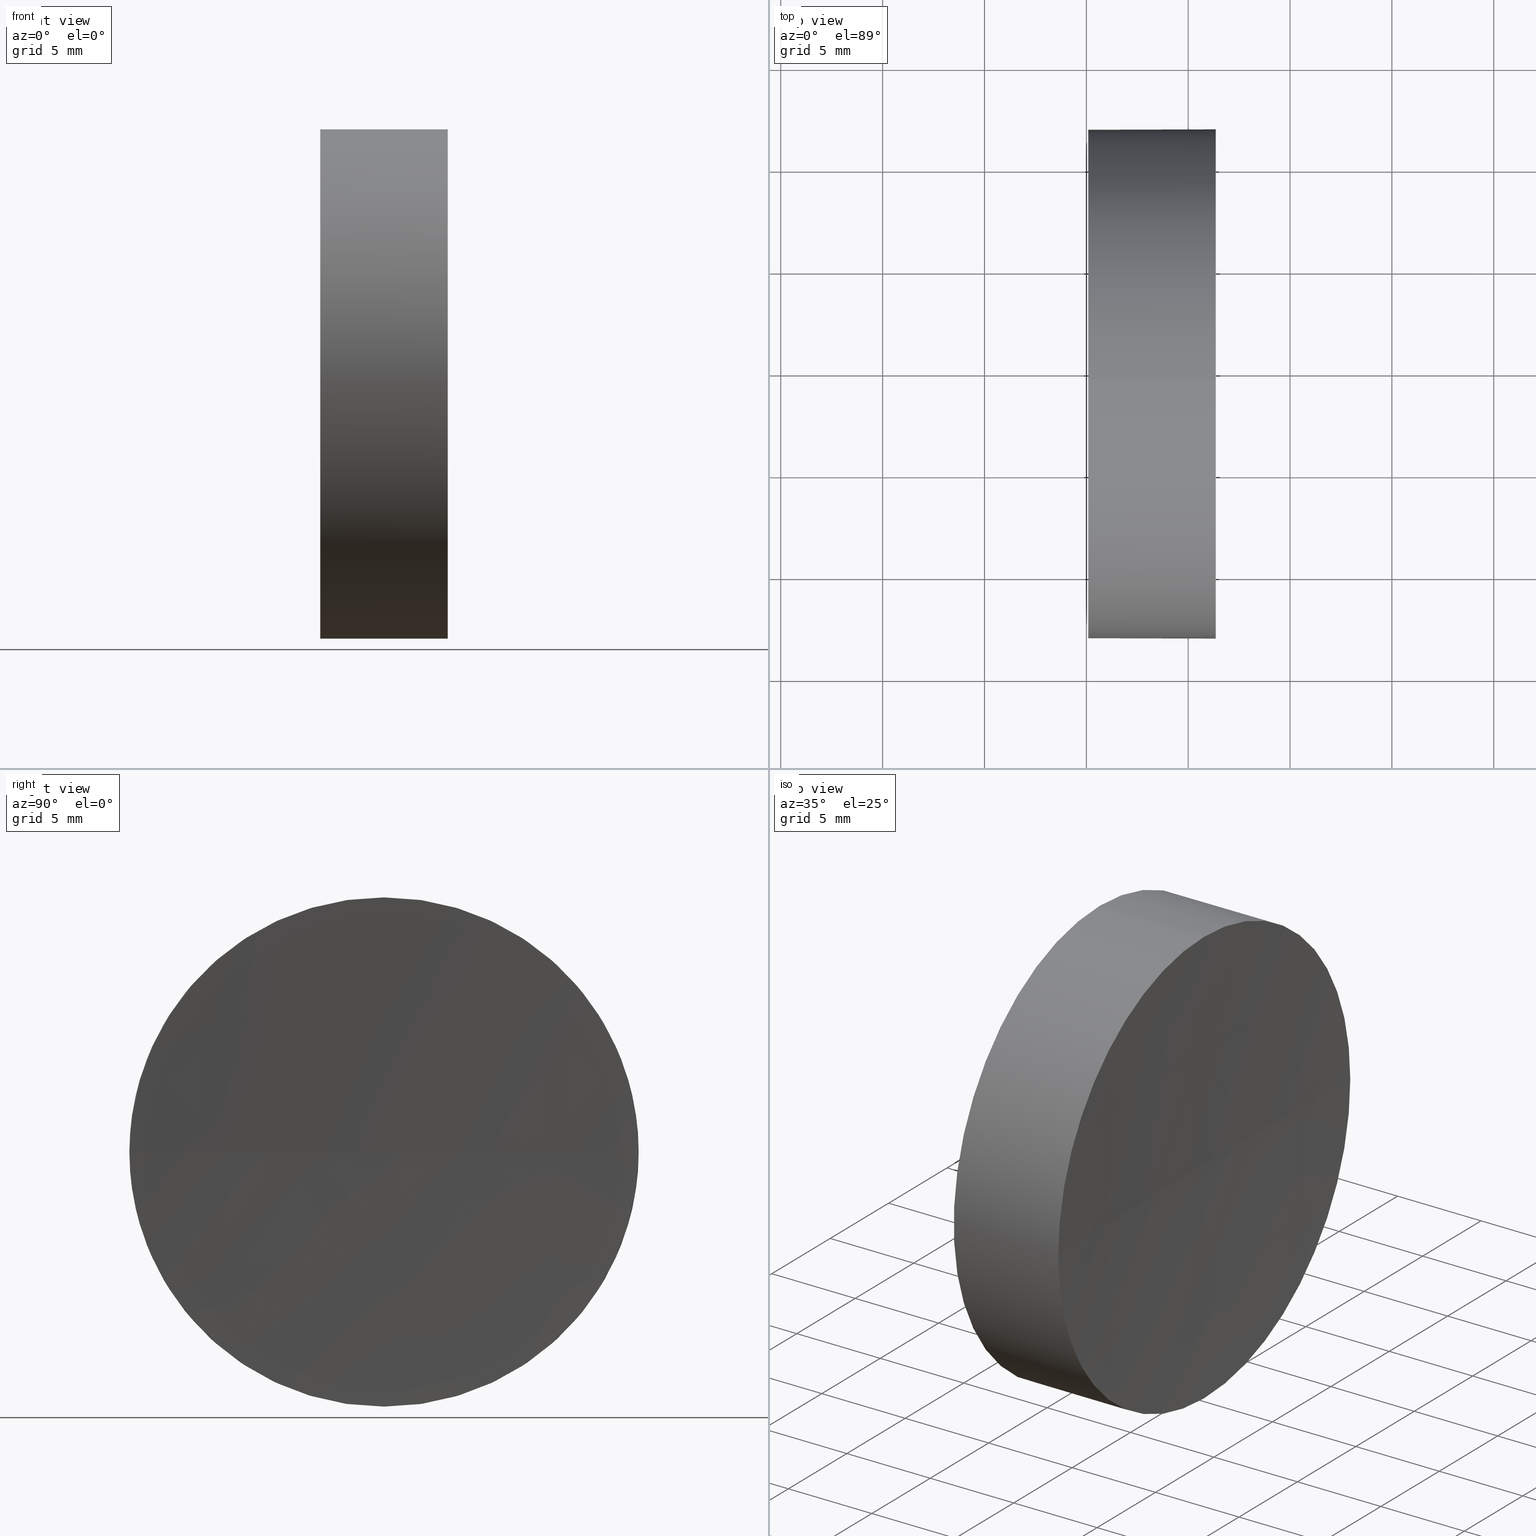
[diagram: canonical four-view strip — front | top / right | iso, engineering-drawing reading convention]
A machine part, canonical four-view strip (front | top / right | iso — engineering-drawing reading convention). The complete STEP part file that produces these views, byte-faithful:
ISO-10303-21;
HEADER;
FILE_DESCRIPTION (( 'STEP AP214' ),
    '1' );
FILE_NAME ('270028.STEP',
    '2019-07-22T07:20:02',
    ( '' ),
    ( '' ),
    'SwSTEP 2.0',
    'SolidWorks 2016',
    '' );
FILE_SCHEMA (( 'AUTOMOTIVE_DESIGN' ));
ENDSEC;

DATA;
#1 =( GEOMETRIC_REPRESENTATION_CONTEXT ( 3 ) GLOBAL_UNCERTAINTY_ASSIGNED_CONTEXT ( ( #33 ) ) GLOBAL_UNIT_ASSIGNED_CONTEXT ( ( #108, #67, #175 ) ) REPRESENTATION_CONTEXT ( 'NONE', 'WORKASPACE' ) );
#2 = CARTESIAN_POINT ( 'NONE',  ( 108.9851430021651000, 69.37802112337243400, 12.50000000000001100 ) ) ;
#3 = CIRCLE ( 'NONE', #38, 12.49999999999999600 ) ;
#4 = DIRECTION ( 'NONE',  ( 0.0000000000000000000, 0.0000000000000000000, -1.000000000000000000 ) ) ;
#5 = STYLED_ITEM ( 'NONE', ( #39 ), #144 ) ;
#6 = VERTEX_POINT ( 'NONE', #15 ) ;
#7 = SURFACE_STYLE_USAGE ( .BOTH. , #145 ) ;
#8 = ORIENTED_EDGE ( 'NONE', *, *, #75, .T. ) ;
#9 = VECTOR ( 'NONE', #96, 1000.000000000000000 ) ;
#10 = PRODUCT_DEFINITION ( 'δ֪', '', #172, #60 ) ;
#11 = DIRECTION ( 'NONE',  ( 0.0000000000000000000, 0.0000000000000000000, 1.000000000000000000 ) ) ;
#12 = SURFACE_STYLE_USAGE ( .BOTH. , #165 ) ;
#13 = AXIS2_PLACEMENT_3D ( 'NONE', #44, #133, #142 ) ;
#14 = CARTESIAN_POINT ( 'NONE',  ( 121.3531853088416000, 69.37802112337243400, 0.0000000000000000000 ) ) ;
#15 = CARTESIAN_POINT ( 'NONE',  ( 121.3531853088415900, 56.87802112337222100, 0.0000000000000000000 ) ) ;
#16 = ORIENTED_EDGE ( 'NONE', *, *, #25, .T. ) ;
#17 = CIRCLE ( 'NONE', #30, 12.50000000000002500 ) ;
#18 = DIRECTION ( 'NONE',  ( 0.0000000000000000000, 0.0000000000000000000, 1.000000000000000000 ) ) ;
#19 = PRESENTATION_LAYER_ASSIGNMENT (  '', '', ( #5 ) ) ;
#20 = ADVANCED_FACE ( 'NONE', ( #128 ), #126, .T. ) ;
#21 = SPHERICAL_SURFACE ( 'NONE', #13, 300.0000000000000600 ) ;
#22 = AXIS2_PLACEMENT_3D ( 'NONE', #185, #83, #18 ) ;
#23 = FILL_AREA_STYLE_COLOUR ( '', #103 ) ;
#24 = CYLINDRICAL_SURFACE ( 'NONE', #89, 12.50000000000001100 ) ;
#25 = EDGE_CURVE ( 'NONE', #77, #121, #3, .T. ) ;
#26 = ORIENTED_EDGE ( 'NONE', *, *, #29, .T. ) ;
#27 = ORIENTED_EDGE ( 'NONE', *, *, #29, .F. ) ;
#28 = CARTESIAN_POINT ( 'NONE',  ( 115.0926555349195200, 69.37802112337243400, 12.49999999999999600 ) ) ;
#29 = EDGE_CURVE ( 'NONE', #121, #77, #174, .T. ) ;
#30 = AXIS2_PLACEMENT_3D ( 'NONE', #159, #62, #59 ) ;
#31 = PRODUCT ( '270028', '270028', '', ( #53 ) ) ;
#32 = FACE_OUTER_BOUND ( 'NONE', #154, .T. ) ;
#33 = UNCERTAINTY_MEASURE_WITH_UNIT (LENGTH_MEASURE( 1.000000000000000100E-005 ), #108, 'distance_accuracy_value', 'NONE');
#34 = AXIS2_PLACEMENT_3D ( 'NONE', #131, #94, #78 ) ;
#35 = DIRECTION ( 'NONE',  ( 0.0000000000000000000, -1.224646799147353200E-016, 1.000000000000000000 ) ) ;
#36 = CIRCLE ( 'NONE', #58, 300.0000000000000600 ) ;
#37 = CARTESIAN_POINT ( 'NONE',  ( 108.9851430021651000, 69.37802112337243400, -12.50000000000001100 ) ) ;
#38 = AXIS2_PLACEMENT_3D ( 'NONE', #74, #167, #84 ) ;
#39 = PRESENTATION_STYLE_ASSIGNMENT (( #7 ) ) ;
#40 = FILL_AREA_STYLE ('',( #104 ) ) ;
#41 = DIRECTION ( 'NONE',  ( -1.000000000000000000, -0.0000000000000000000, -0.0000000000000000000 ) ) ;
#42 = ORIENTED_EDGE ( 'NONE', *, *, #151, .T. ) ;
#43 =( NAMED_UNIT ( * ) PLANE_ANGLE_UNIT ( ) SI_UNIT ( $, .RADIAN. ) );
#44 = CARTESIAN_POINT ( 'NONE',  ( 421.0926555158865800, 69.37802112337246300, 0.0000000000000000000 ) ) ;
#45 = ORIENTED_EDGE ( 'NONE', *, *, #166, .T. ) ;
#46 = LINE ( 'NONE', #37, #9 ) ;
#47 = ORIENTED_EDGE ( 'NONE', *, *, #137, .T. ) ;
#48 = FILL_AREA_STYLE ('',( #23 ) ) ;
#49 = AXIS2_PLACEMENT_3D ( 'NONE', #98, #173, #61 ) ;
#50 = APPLICATION_CONTEXT ( 'automotive_design' ) ;
#51 = ORIENTED_EDGE ( 'NONE', *, *, #146, .F. ) ;
#52 = FACE_OUTER_BOUND ( 'NONE', #86, .T. ) ;
#53 = PRODUCT_CONTEXT ( 'NONE', #50, 'mechanical' ) ;
#54 = AXIS2_PLACEMENT_3D ( 'NONE', #14, #169, #136 ) ;
#55 = DIRECTION ( 'NONE',  ( -1.000000000000000000, -0.0000000000000000000, -0.0000000000000000000 ) ) ;
#56 = CARTESIAN_POINT ( 'NONE',  ( 108.9851430021651000, 69.37802112337243400, 0.0000000000000000000 ) ) ;
#57 = DIRECTION ( 'NONE',  ( 0.0000000000000000000, 0.0000000000000000000, 1.000000000000000000 ) ) ;
#58 = AXIS2_PLACEMENT_3D ( 'NONE', #143, #127, #115 ) ;
#59 = DIRECTION ( 'NONE',  ( 0.0000000000000000000, 0.0000000000000000000, 1.000000000000000000 ) ) ;
#60 = PRODUCT_DEFINITION_CONTEXT ( 'detailed design', #101, 'design' ) ;
#61 = DIRECTION ( 'NONE',  ( 0.0000000000000000000, 0.0000000000000000000, 1.000000000000000000 ) ) ;
#62 = DIRECTION ( 'NONE',  ( -1.000000000000000000, -0.0000000000000000000, -0.0000000000000000000 ) ) ;
#63 = PRODUCT_RELATED_PRODUCT_CATEGORY ( 'part', '', ( #31 ) ) ;
#64 = CARTESIAN_POINT ( 'NONE',  ( 0.0000000000000000000, 0.0000000000000000000, 0.0000000000000000000 ) ) ;
#65 = FACE_OUTER_BOUND ( 'NONE', #113, .T. ) ;
#66 = CARTESIAN_POINT ( 'NONE',  ( 121.3531853088416000, 69.37802112337243400, -12.50000000000002500 ) ) ;
#67 =( NAMED_UNIT ( * ) PLANE_ANGLE_UNIT ( ) SI_UNIT ( $, .RADIAN. ) );
#68 = ORIENTED_EDGE ( 'NONE', *, *, #163, .T. ) ;
#69 = DIRECTION ( 'NONE',  ( 1.000000000000000000, 0.0000000000000000000, 0.0000000000000000000 ) ) ;
#70 = EDGE_CURVE ( 'NONE', #119, #102, #138, .T. ) ;
#71 = ORIENTED_EDGE ( 'NONE', *, *, #163, .F. ) ;
#72 = AXIS2_PLACEMENT_3D ( 'NONE', #106, #35, #81 ) ;
#73 = PRODUCT_DEFINITION_SHAPE ( 'NONE', 'NONE',  #10 ) ;
#74 = CARTESIAN_POINT ( 'NONE',  ( 115.0926555349195200, 69.37802112337243400, 0.0000000000000000000 ) ) ;
#75 = EDGE_CURVE ( 'NONE', #102, #186, #170, .T. ) ;
#76 = CARTESIAN_POINT ( 'NONE',  ( 121.3531853088416000, 69.37802112337243400, 12.50000000000002500 ) ) ;
#77 = VERTEX_POINT ( 'NONE', #28 ) ;
#78 = DIRECTION ( 'NONE',  ( 0.0000000000000000000, -1.000000000000000000, 0.0000000000000000000 ) ) ;
#79 = ORIENTED_EDGE ( 'NONE', *, *, #166, .F. ) ;
#80 =( LENGTH_UNIT ( ) NAMED_UNIT ( * ) SI_UNIT ( .MILLI., .METRE. ) );
#81 = DIRECTION ( 'NONE',  ( 0.0000000000000000000, -1.000000000000000000, -1.224646799147353200E-016 ) ) ;
#82 = ORIENTED_EDGE ( 'NONE', *, *, #25, .F. ) ;
#83 = DIRECTION ( 'NONE',  ( -1.000000000000000000, -0.0000000000000000000, -0.0000000000000000000 ) ) ;
#84 = DIRECTION ( 'NONE',  ( 0.0000000000000000000, 0.0000000000000000000, 1.000000000000000000 ) ) ;
#85 = ADVANCED_FACE ( 'NONE', ( #65 ), #24, .T. ) ;
#86 = EDGE_LOOP ( 'NONE', ( #147, #152, #91, #45 ) ) ;
#87 = CIRCLE ( 'NONE', #49, 12.50000000000002500 ) ;
#88 = CARTESIAN_POINT ( 'NONE',  ( 121.3531853088416000, 69.37802112337243400, 0.0000000000000000000 ) ) ;
#89 = AXIS2_PLACEMENT_3D ( 'NONE', #124, #110, #57 ) ;
#90 =( LENGTH_UNIT ( ) NAMED_UNIT ( * ) SI_UNIT ( .MILLI., .METRE. ) );
#91 = ORIENTED_EDGE ( 'NONE', *, *, #141, .F. ) ;
#92 = MANIFOLD_SOLID_BREP ( '��ת1', #150 ) ;
#93 = DIRECTION ( 'NONE',  ( 1.000000000000000000, 0.0000000000000000000, 0.0000000000000000000 ) ) ;
#94 = DIRECTION ( 'NONE',  ( 0.0000000000000000000, 0.0000000000000000000, 1.000000000000000000 ) ) ;
#95 = VERTEX_POINT ( 'NONE', #117 ) ;
#96 = DIRECTION ( 'NONE',  ( -1.000000000000000000, -0.0000000000000000000, -0.0000000000000000000 ) ) ;
#97 = CARTESIAN_POINT ( 'NONE',  ( 115.0926555349195200, 69.37802112337243400, 0.0000000000000000000 ) ) ;
#98 = CARTESIAN_POINT ( 'NONE',  ( 121.3531853088416000, 69.37802112337243400, 0.0000000000000000000 ) ) ;
#99 = PRESENTATION_STYLE_ASSIGNMENT (( #12 ) ) ;
#100 = AXIS2_PLACEMENT_3D ( 'NONE', #56, #55, #181 ) ;
#101 = APPLICATION_CONTEXT ( 'automotive_design' ) ;
#102 = VERTEX_POINT ( 'NONE', #123 ) ;
#103 = COLOUR_RGB ( '',1.000000000000000000, 1.000000000000000000, 1.000000000000000000 ) ;
#104 = FILL_AREA_STYLE_COLOUR ( '', #164 ) ;
#105 = DIRECTION ( 'NONE',  ( -1.000000000000000000, -0.0000000000000000000, -0.0000000000000000000 ) ) ;
#106 = CARTESIAN_POINT ( 'NONE',  ( 421.0926555158865800, 69.37802112337246300, 0.0000000000000000000 ) ) ;
#107 = UNCERTAINTY_MEASURE_WITH_UNIT (LENGTH_MEASURE( 1.000000000000000100E-005 ), #80, 'distance_accuracy_value', 'NONE');
#108 =( LENGTH_UNIT ( ) NAMED_UNIT ( * ) SI_UNIT ( .MILLI., .METRE. ) );
#109 = APPLICATION_PROTOCOL_DEFINITION ( 'draft international standard', 'automotive_design', 1998, #50 ) ;
#110 = DIRECTION ( 'NONE',  ( -1.000000000000000000, -0.0000000000000000000, -0.0000000000000000000 ) ) ;
#111 = ADVANCED_FACE ( 'NONE', ( #168 ), #122, .F. ) ;
#112 = UNCERTAINTY_MEASURE_WITH_UNIT (LENGTH_MEASURE( 1.000000000000000100E-005 ), #90, 'distance_accuracy_value', 'NONE');
#113 = EDGE_LOOP ( 'NONE', ( #8, #155, #82, #71, #116 ) ) ;
#114 =( NAMED_UNIT ( * ) PLANE_ANGLE_UNIT ( ) SI_UNIT ( $, .RADIAN. ) );
#115 = DIRECTION ( 'NONE',  ( -1.000000000000000000, 0.0000000000000000000, 0.0000000000000000000 ) ) ;
#116 = ORIENTED_EDGE ( 'NONE', *, *, #70, .T. ) ;
#117 = CARTESIAN_POINT ( 'NONE',  ( 121.0926555158865500, 69.37802112337244900, 0.0000000000000000000 ) ) ;
#118 =( NAMED_UNIT ( * ) SI_UNIT ( $, .STERADIAN. ) SOLID_ANGLE_UNIT ( ) );
#119 = VERTEX_POINT ( 'NONE', #76 ) ;
#120 = ORIENTED_EDGE ( 'NONE', *, *, #75, .F. ) ;
#121 = VERTEX_POINT ( 'NONE', #130 ) ;
#122 = PLANE ( 'NONE',  #161 ) ;
#123 = CARTESIAN_POINT ( 'NONE',  ( 121.3531853088415900, 81.87802112337266200, 1.530808498934217400E-015 ) ) ;
#124 = CARTESIAN_POINT ( 'NONE',  ( 108.9851430021651000, 69.37802112337243400, 0.0000000000000000000 ) ) ;
#125 = ADVANCED_FACE ( 'NONE', ( #52 ), #21, .F. ) ;
#126 = CYLINDRICAL_SURFACE ( 'NONE', #100, 12.50000000000001100 ) ;
#127 = DIRECTION ( 'NONE',  ( 0.0000000000000000000, 0.0000000000000000000, -1.000000000000000000 ) ) ;
#128 = FACE_OUTER_BOUND ( 'NONE', #183, .T. ) ;
#129 = VECTOR ( 'NONE', #105, 1000.000000000000000 ) ;
#130 = CARTESIAN_POINT ( 'NONE',  ( 115.0926555349195200, 69.37802112337243400, -12.49999999999999600 ) ) ;
#131 = CARTESIAN_POINT ( 'NONE',  ( 421.0926555158865800, 69.37802112337246300, 0.0000000000000000000 ) ) ;
#132 = MECHANICAL_DESIGN_GEOMETRIC_PRESENTATION_REPRESENTATION (  '', ( #177 ), #171 ) ;
#133 = DIRECTION ( 'NONE',  ( 0.0000000000000000000, 0.0000000000000000000, 1.000000000000000000 ) ) ;
#134 = SURFACE_STYLE_FILL_AREA ( #40 ) ;
#135 = CIRCLE ( 'NONE', #72, 300.0000000000000600 ) ;
#136 = DIRECTION ( 'NONE',  ( 0.0000000000000000000, 0.0000000000000000000, 1.000000000000000000 ) ) ;
#137 = EDGE_CURVE ( 'NONE', #186, #6, #17, .T. ) ;
#138 = CIRCLE ( 'NONE', #149, 12.50000000000002500 ) ;
#139 = ADVANCED_FACE ( 'NONE', ( #32 ), #156, .F. ) ;
#140 =( NAMED_UNIT ( * ) SI_UNIT ( $, .STERADIAN. ) SOLID_ANGLE_UNIT ( ) );
#141 = EDGE_CURVE ( 'NONE', #6, #119, #87, .T. ) ;
#142 = DIRECTION ( 'NONE',  ( 0.0000000000000000000, -1.000000000000000000, 0.0000000000000000000 ) ) ;
#143 = CARTESIAN_POINT ( 'NONE',  ( 421.0926555158865800, 69.37802112337246300, 0.0000000000000000000 ) ) ;
#144 = ADVANCED_BREP_SHAPE_REPRESENTATION ( '270028', ( #92, #157 ), #180 ) ;
#145 = SURFACE_SIDE_STYLE ('',( #178 ) ) ;
#146 = EDGE_CURVE ( 'NONE', #186, #121, #46, .T. ) ;
#147 = ORIENTED_EDGE ( 'NONE', *, *, #151, .F. ) ;
#148 = APPLICATION_PROTOCOL_DEFINITION ( 'draft international standard', 'automotive_design', 1998, #101 ) ;
#149 = AXIS2_PLACEMENT_3D ( 'NONE', #88, #41, #11 ) ;
#150 = CLOSED_SHELL ( 'NONE', ( #85, #139, #125, #20, #111 ) ) ;
#151 = EDGE_CURVE ( 'NONE', #102, #95, #135, .T. ) ;
#152 = ORIENTED_EDGE ( 'NONE', *, *, #70, .F. ) ;
#153 = LINE ( 'NONE', #2, #129 ) ;
#154 = EDGE_LOOP ( 'NONE', ( #120, #42, #79, #162 ) ) ;
#155 = ORIENTED_EDGE ( 'NONE', *, *, #146, .T. ) ;
#156 = SPHERICAL_SURFACE ( 'NONE', #34, 300.0000000000000600 ) ;
#157 = AXIS2_PLACEMENT_3D ( 'NONE', #64, #176, #69 ) ;
#158 = PRESENTATION_LAYER_ASSIGNMENT (  '', '', ( #177 ) ) ;
#159 = CARTESIAN_POINT ( 'NONE',  ( 121.3531853088416000, 69.37802112337243400, 0.0000000000000000000 ) ) ;
#160 = EDGE_LOOP ( 'NONE', ( #16, #26 ) ) ;
#161 = AXIS2_PLACEMENT_3D ( 'NONE', #97, #93, #4 ) ;
#162 = ORIENTED_EDGE ( 'NONE', *, *, #137, .F. ) ;
#163 = EDGE_CURVE ( 'NONE', #119, #77, #153, .T. ) ;
#164 = COLOUR_RGB ( '',1.000000000000000000, 1.000000000000000000, 1.000000000000000000 ) ;
#165 = SURFACE_SIDE_STYLE ('',( #134 ) ) ;
#166 = EDGE_CURVE ( 'NONE', #6, #95, #36, .T. ) ;
#167 = DIRECTION ( 'NONE',  ( -1.000000000000000000, -0.0000000000000000000, -0.0000000000000000000 ) ) ;
#168 = FACE_OUTER_BOUND ( 'NONE', #160, .T. ) ;
#169 = DIRECTION ( 'NONE',  ( -1.000000000000000000, -0.0000000000000000000, -0.0000000000000000000 ) ) ;
#170 = CIRCLE ( 'NONE', #54, 12.50000000000002500 ) ;
#171 =( GEOMETRIC_REPRESENTATION_CONTEXT ( 3 ) GLOBAL_UNCERTAINTY_ASSIGNED_CONTEXT ( ( #112 ) ) GLOBAL_UNIT_ASSIGNED_CONTEXT ( ( #90, #43, #140 ) ) REPRESENTATION_CONTEXT ( 'NONE', 'WORKASPACE' ) );
#172 = PRODUCT_DEFINITION_FORMATION_WITH_SPECIFIED_SOURCE ( '�κ�', '', #31, .NOT_KNOWN. ) ;
#173 = DIRECTION ( 'NONE',  ( -1.000000000000000000, -0.0000000000000000000, -0.0000000000000000000 ) ) ;
#174 = CIRCLE ( 'NONE', #22, 12.49999999999999600 ) ;
#175 =( NAMED_UNIT ( * ) SI_UNIT ( $, .STERADIAN. ) SOLID_ANGLE_UNIT ( ) );
#176 = DIRECTION ( 'NONE',  ( 0.0000000000000000000, 0.0000000000000000000, 1.000000000000000000 ) ) ;
#177 = STYLED_ITEM ( 'NONE', ( #99 ), #92 ) ;
#178 = SURFACE_STYLE_FILL_AREA ( #48 ) ;
#179 = ORIENTED_EDGE ( 'NONE', *, *, #141, .T. ) ;
#180 =( GEOMETRIC_REPRESENTATION_CONTEXT ( 3 ) GLOBAL_UNCERTAINTY_ASSIGNED_CONTEXT ( ( #107 ) ) GLOBAL_UNIT_ASSIGNED_CONTEXT ( ( #80, #114, #118 ) ) REPRESENTATION_CONTEXT ( 'NONE', 'WORKASPACE' ) );
#181 = DIRECTION ( 'NONE',  ( 0.0000000000000000000, 0.0000000000000000000, 1.000000000000000000 ) ) ;
#182 = MECHANICAL_DESIGN_GEOMETRIC_PRESENTATION_REPRESENTATION (  '', ( #5 ), #1 ) ;
#183 = EDGE_LOOP ( 'NONE', ( #51, #47, #179, #68, #27 ) ) ;
#184 = SHAPE_DEFINITION_REPRESENTATION ( #73, #144 ) ;
#185 = CARTESIAN_POINT ( 'NONE',  ( 115.0926555349195200, 69.37802112337243400, 0.0000000000000000000 ) ) ;
#186 = VERTEX_POINT ( 'NONE', #66 ) ;
ENDSEC;
END-ISO-10303-21;
